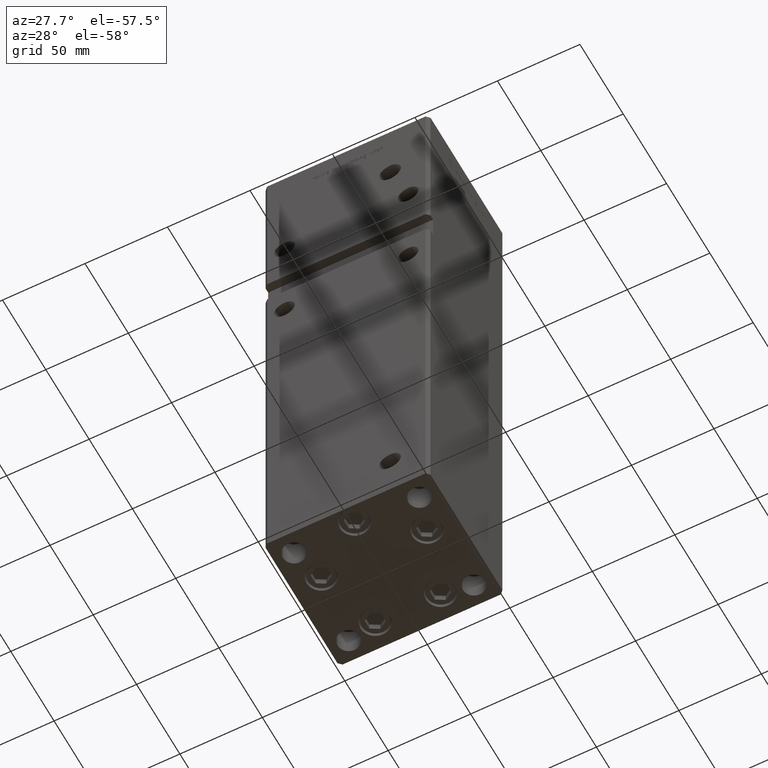
[diagram: clean part render]
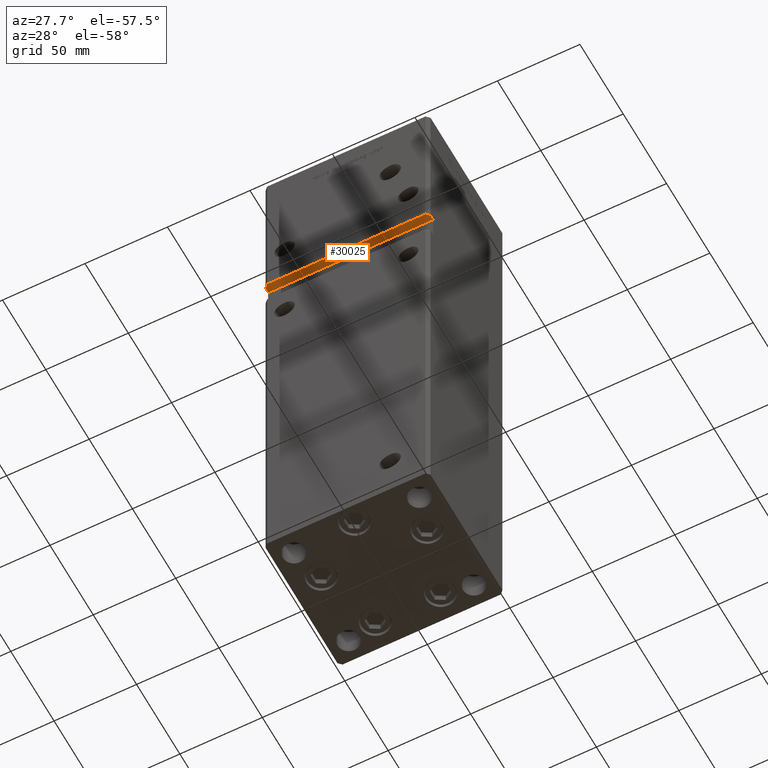
[diagram: same view with one face highlighted and labeled with its STEP entity id]
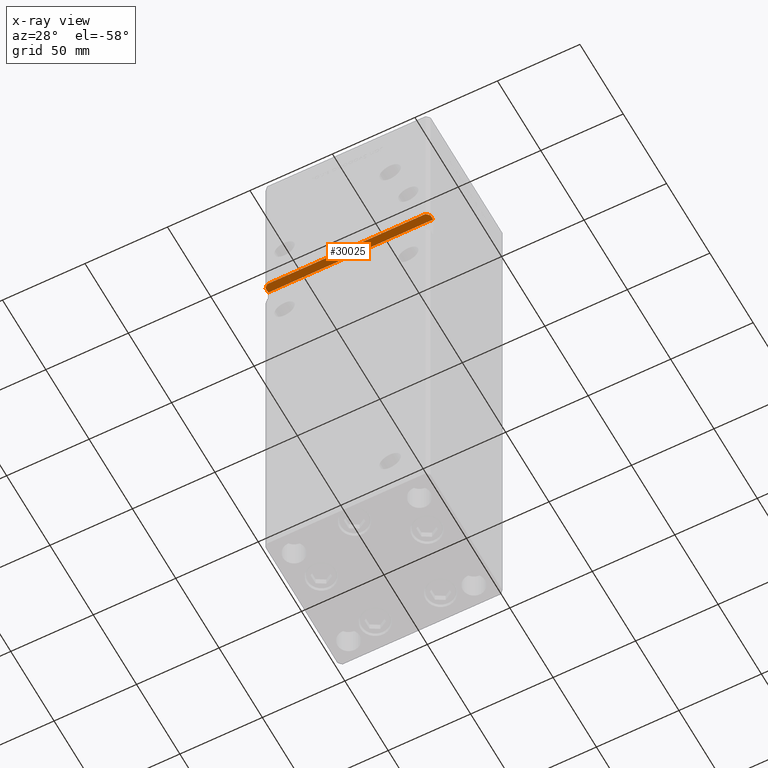
[diagram: x-ray of the same camera — body ghosted, the highlighted face saturated]
A machine part, auxiliary view. The second image highlights one B-rep face of the part: STEP entity #30025.
The next image is the same camera in x-ray: the body ghosted, the highlighted face saturated — about 0% of this face is hidden behind the body in this view.
In plain terms, the highlighted planar face has unit normal (0, 0, 1).
Its self-contained STEP definition (entity closure, byte-faithful):
#1349 = PLANE ( 'NONE',  #26764 ) ;
#1664 = LINE ( 'NONE', #51896, #13413 ) ;
#3706 = CARTESIAN_POINT ( 'NONE',  ( 50.00000000000000000, -41.49999999999999289, 240.0000000000000284 ) ) ;
#4685 = ORIENTED_EDGE ( 'NONE', *, *, #45903, .F. ) ;
#7031 = DIRECTION ( 'NONE',  ( -1.000000000000000000, -0.000000000000000000, -0.000000000000000000 ) ) ;
#7371 = EDGE_CURVE ( 'NONE', #45604, #15312, #51051, .T. ) ;
#7543 = EDGE_CURVE ( 'NONE', #20033, #34826, #44571, .T. ) ;
#9091 = ORIENTED_EDGE ( 'NONE', *, *, #7371, .F. ) ;
#9140 = DIRECTION ( 'NONE',  ( -0.000000000000000000, -1.000000000000000000, -0.000000000000000000 ) ) ;
#13175 = CARTESIAN_POINT ( 'NONE',  ( -49.99999999999998579, -38.50000000000000000, 240.0000000000000284 ) ) ;
#13413 = VECTOR ( 'NONE', #7031, 1000.000000000000000 ) ;
#15312 = VERTEX_POINT ( 'NONE', #47809 ) ;
#15515 = VECTOR ( 'NONE', #24453, 1000.000000000000114 ) ;
#16543 = ORIENTED_EDGE ( 'NONE', *, *, #33252, .T. ) ;
#18471 = CARTESIAN_POINT ( 'NONE',  ( -49.99999999999998579, -38.50000000000000000, 240.0000000000000284 ) ) ;
#20033 = VERTEX_POINT ( 'NONE', #38482 ) ;
#20117 = DIRECTION ( 'NONE',  ( -1.000000000000000000, -0.000000000000000000, -0.000000000000000000 ) ) ;
#21007 = DIRECTION ( 'NONE',  ( 1.000000000000000000, 0.000000000000000000, -0.000000000000000000 ) ) ;
#21395 = ORIENTED_EDGE ( 'NONE', *, *, #51003, .T. ) ;
#21538 = FACE_OUTER_BOUND ( 'NONE', #24419, .T. ) ;
#22303 = VECTOR ( 'NONE', #20117, 1000.000000000000000 ) ;
#23500 = CARTESIAN_POINT ( 'NONE',  ( 47.99999999999995737, -43.50000000000000000, 240.0000000000000284 ) ) ;
#24313 = VECTOR ( 'NONE', #48767, 1000.000000000000000 ) ;
#24419 = EDGE_LOOP ( 'NONE', ( #4685, #33894, #16543, #28885, #21395, #9091 ) ) ;
#24453 = DIRECTION ( 'NONE',  ( -0.7071067811865474617, -0.7071067811865474617, 0.000000000000000000 ) ) ;
#26083 = CARTESIAN_POINT ( 'NONE',  ( -49.99999999999998579, -41.49999999999999289, 240.0000000000000284 ) ) ;
#26667 = EDGE_CURVE ( 'NONE', #43896, #50824, #53178, .T. ) ;
#26764 = AXIS2_PLACEMENT_3D ( 'NONE', #33352, #37660, #21007 ) ;
#28089 = CARTESIAN_POINT ( 'NONE',  ( 50.00000000000000000, -38.50000000000000000, 240.0000000000000284 ) ) ;
#28885 = ORIENTED_EDGE ( 'NONE', *, *, #26667, .T. ) ;
#30000 = VECTOR ( 'NONE', #30632, 1000.000000000000114 ) ;
#30025 = ADVANCED_FACE ( 'NONE', ( #21538 ), #1349, .F. ) ;
#30632 = DIRECTION ( 'NONE',  ( 0.7071067811865474617, -0.7071067811865474617, 0.000000000000000000 ) ) ;
#32458 = CARTESIAN_POINT ( 'NONE',  ( -49.99999999999998579, -38.50000000000000000, 240.0000000000000284 ) ) ;
#33252 = EDGE_CURVE ( 'NONE', #20033, #43896, #47976, .T. ) ;
#33352 = CARTESIAN_POINT ( 'NONE',  ( -49.99999999999998579, -38.50000000000000000, 240.0000000000000284 ) ) ;
#33894 = ORIENTED_EDGE ( 'NONE', *, *, #7543, .F. ) ;
#34826 = VERTEX_POINT ( 'NONE', #18471 ) ;
#36804 = CARTESIAN_POINT ( 'NONE',  ( 49.99999999999998579, -41.49999999999999289, 240.0000000000000284 ) ) ;
#37660 = DIRECTION ( 'NONE',  ( 0.000000000000000000, 0.000000000000000000, 1.000000000000000000 ) ) ;
#38482 = CARTESIAN_POINT ( 'NONE',  ( 50.00000000000000000, -38.50000000000000000, 240.0000000000000284 ) ) ;
#43133 = CARTESIAN_POINT ( 'NONE',  ( -49.99999999999998579, -41.49999999999999289, 240.0000000000000284 ) ) ;
#43896 = VERTEX_POINT ( 'NONE', #3706 ) ;
#44571 = LINE ( 'NONE', #32458, #22303 ) ;
#45604 = VERTEX_POINT ( 'NONE', #43133 ) ;
#45903 = EDGE_CURVE ( 'NONE', #34826, #45604, #49979, .T. ) ;
#45989 = VECTOR ( 'NONE', #9140, 1000.000000000000000 ) ;
#47809 = CARTESIAN_POINT ( 'NONE',  ( -47.99999999999998579, -43.50000000000000000, 240.0000000000000284 ) ) ;
#47976 = LINE ( 'NONE', #28089, #24313 ) ;
#48767 = DIRECTION ( 'NONE',  ( -0.000000000000000000, -1.000000000000000000, -0.000000000000000000 ) ) ;
#49979 = LINE ( 'NONE', #13175, #45989 ) ;
#50824 = VERTEX_POINT ( 'NONE', #23500 ) ;
#51003 = EDGE_CURVE ( 'NONE', #50824, #15312, #1664, .T. ) ;
#51051 = LINE ( 'NONE', #26083, #30000 ) ;
#51896 = CARTESIAN_POINT ( 'NONE',  ( -49.99999999999998579, -43.50000000000000000, 240.0000000000000284 ) ) ;
#53178 = LINE ( 'NONE', #36804, #15515 ) ;